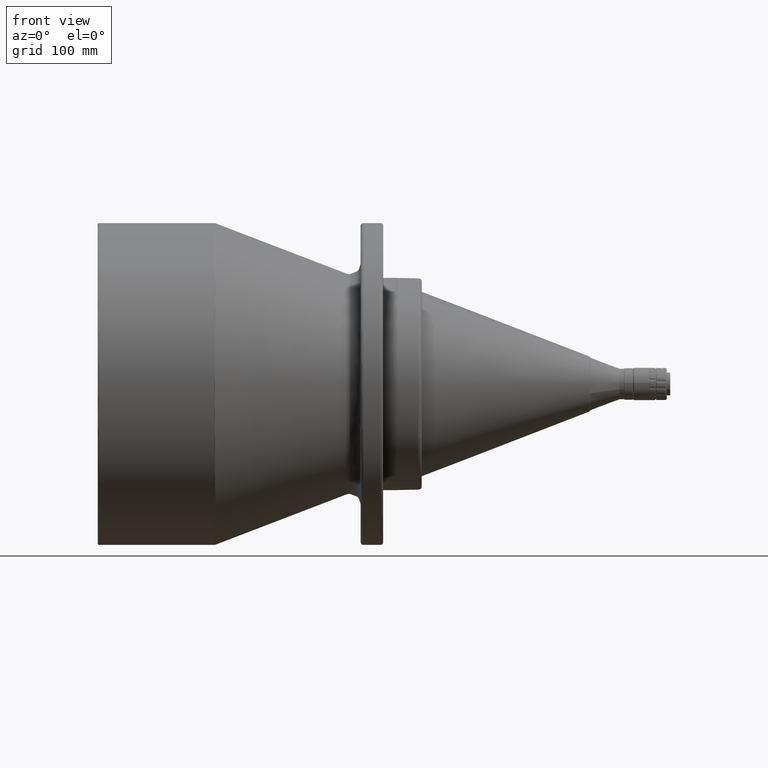
[diagram: clean part render]
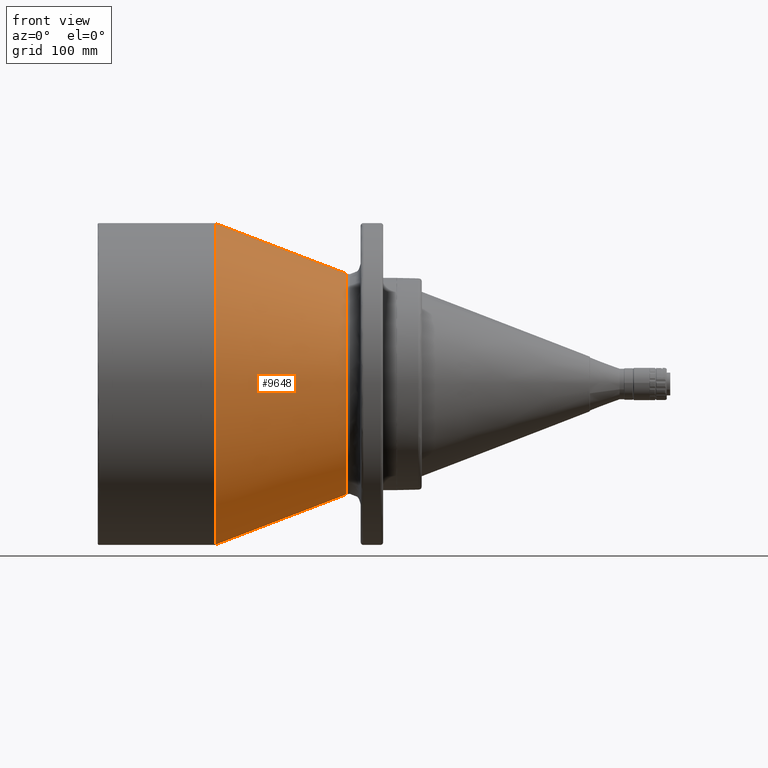
[diagram: same view with one face highlighted and labeled with its STEP entity id]
A machine part, front view. The second image highlights one B-rep face of the part: STEP entity #9648.
In plain terms, the highlighted conical surface has half-angle 21 deg.
Its self-contained STEP definition (entity closure, byte-faithful):
#410 = VERTEX_POINT ( 'NONE', #3911 ) ;
#958 = LINE ( 'NONE', #4635, #7887 ) ;
#1156 = CIRCLE ( 'NONE', #5542, 178.8671608530000000 ) ;
#1403 = VERTEX_POINT ( 'NONE', #6802 ) ;
#1513 = CARTESIAN_POINT ( 'NONE',  ( 130.7167358991239900, -1.834313396987676600E-008, -178.8671608526298700 ) ) ;
#1545 = DIRECTION ( 'NONE',  ( 0.0000000000000000000, 0.0000000000000000000, 1.000000000000000000 ) ) ;
#1693 = AXIS2_PLACEMENT_3D ( 'NONE', #5451, #8536, #1545 ) ;
#1742 = EDGE_LOOP ( 'NONE', ( #2971, #7376, #9334, #8612 ) ) ;
#1935 = DIRECTION ( 'NONE',  ( -0.9335804264966265400, 0.0000000000000000000, 0.3583679495467986800 ) ) ;
#2200 = CARTESIAN_POINT ( 'NONE',  ( 276.1995846035396200, 0.0000000000000000000, 123.0215275210156700 ) ) ;
#2777 = DIRECTION ( 'NONE',  ( -3.103484785386572400E-016, 0.0000000000000000000, 1.000000000000000000 ) ) ;
#2971 = ORIENTED_EDGE ( 'NONE', *, *, #6162, .F. ) ;
#3023 = EDGE_CURVE ( 'NONE', #1403, #6190, #5447, .T. ) ;
#3789 = VECTOR ( 'NONE', #1935, 1000.000000000000000 ) ;
#3911 = CARTESIAN_POINT ( 'NONE',  ( 130.7167358991033300, -8.030565689868352500E-009, 178.8671608526915400 ) ) ;
#4136 = FACE_OUTER_BOUND ( 'NONE', #1742, .T. ) ;
#4635 = CARTESIAN_POINT ( 'NONE',  ( 276.1995846050000400, 1.506579199035860500E-014, -123.0215275200000100 ) ) ;
#5088 = CARTESIAN_POINT ( 'NONE',  ( 276.1995846050000400, 0.0000000000000000000, 123.0215275200000100 ) ) ;
#5447 = CIRCLE ( 'NONE', #9386, 123.0215275208649100 ) ;
#5451 = CARTESIAN_POINT ( 'NONE',  ( 276.1995846050000400, 0.0000000000000000000, 0.0000000000000000000 ) ) ;
#5524 = LINE ( 'NONE', #5088, #3789 ) ;
#5542 = AXIS2_PLACEMENT_3D ( 'NONE', #6648, #9845, #2777 ) ;
#6162 = EDGE_CURVE ( 'NONE', #1403, #7971, #958, .T. ) ;
#6190 = VERTEX_POINT ( 'NONE', #2200 ) ;
#6455 = CARTESIAN_POINT ( 'NONE',  ( 276.1995846035396200, 0.0000000000000000000, 0.0000000000000000000 ) ) ;
#6648 = CARTESIAN_POINT ( 'NONE',  ( 130.7167358990000100, 0.0000000000000000000, 0.0000000000000000000 ) ) ;
#6802 = CARTESIAN_POINT ( 'NONE',  ( 276.1995846035396200, 1.506579199048298600E-014, -123.0215275210156700 ) ) ;
#7239 = DIRECTION ( 'NONE',  ( -4.512311979043092800E-016, -1.000000000000000000, 0.0000000000000000000 ) ) ;
#7376 = ORIENTED_EDGE ( 'NONE', *, *, #3023, .T. ) ;
#7431 = EDGE_CURVE ( 'NONE', #6190, #410, #5524, .T. ) ;
#7846 = DIRECTION ( 'NONE',  ( -0.9335804264966265400, 4.388741623294871600E-017, -0.3583679495467986800 ) ) ;
#7887 = VECTOR ( 'NONE', #7846, 1000.000000000000000 ) ;
#7971 = VERTEX_POINT ( 'NONE', #1513 ) ;
#8536 = DIRECTION ( 'NONE',  ( -1.000000000000000000, 0.0000000000000000000, 0.0000000000000000000 ) ) ;
#8612 = ORIENTED_EDGE ( 'NONE', *, *, #9875, .F. ) ;
#9334 = ORIENTED_EDGE ( 'NONE', *, *, #7431, .T. ) ;
#9386 = AXIS2_PLACEMENT_3D ( 'NONE', #6455, #9625, #7239 ) ;
#9625 = DIRECTION ( 'NONE',  ( -1.000000000000000000, 4.512311979037987900E-016, 0.0000000000000000000 ) ) ;
#9648 = ADVANCED_FACE ( 'NONE', ( #4136 ), #9825, .T. ) ;
#9825 = CONICAL_SURFACE ( 'NONE', #1693, 123.0215275200000100, 0.3665191429204142100 ) ;
#9845 = DIRECTION ( 'NONE',  ( -1.000000000000000000, 0.0000000000000000000, 0.0000000000000000000 ) ) ;
#9875 = EDGE_CURVE ( 'NONE', #7971, #410, #1156, .T. ) ;